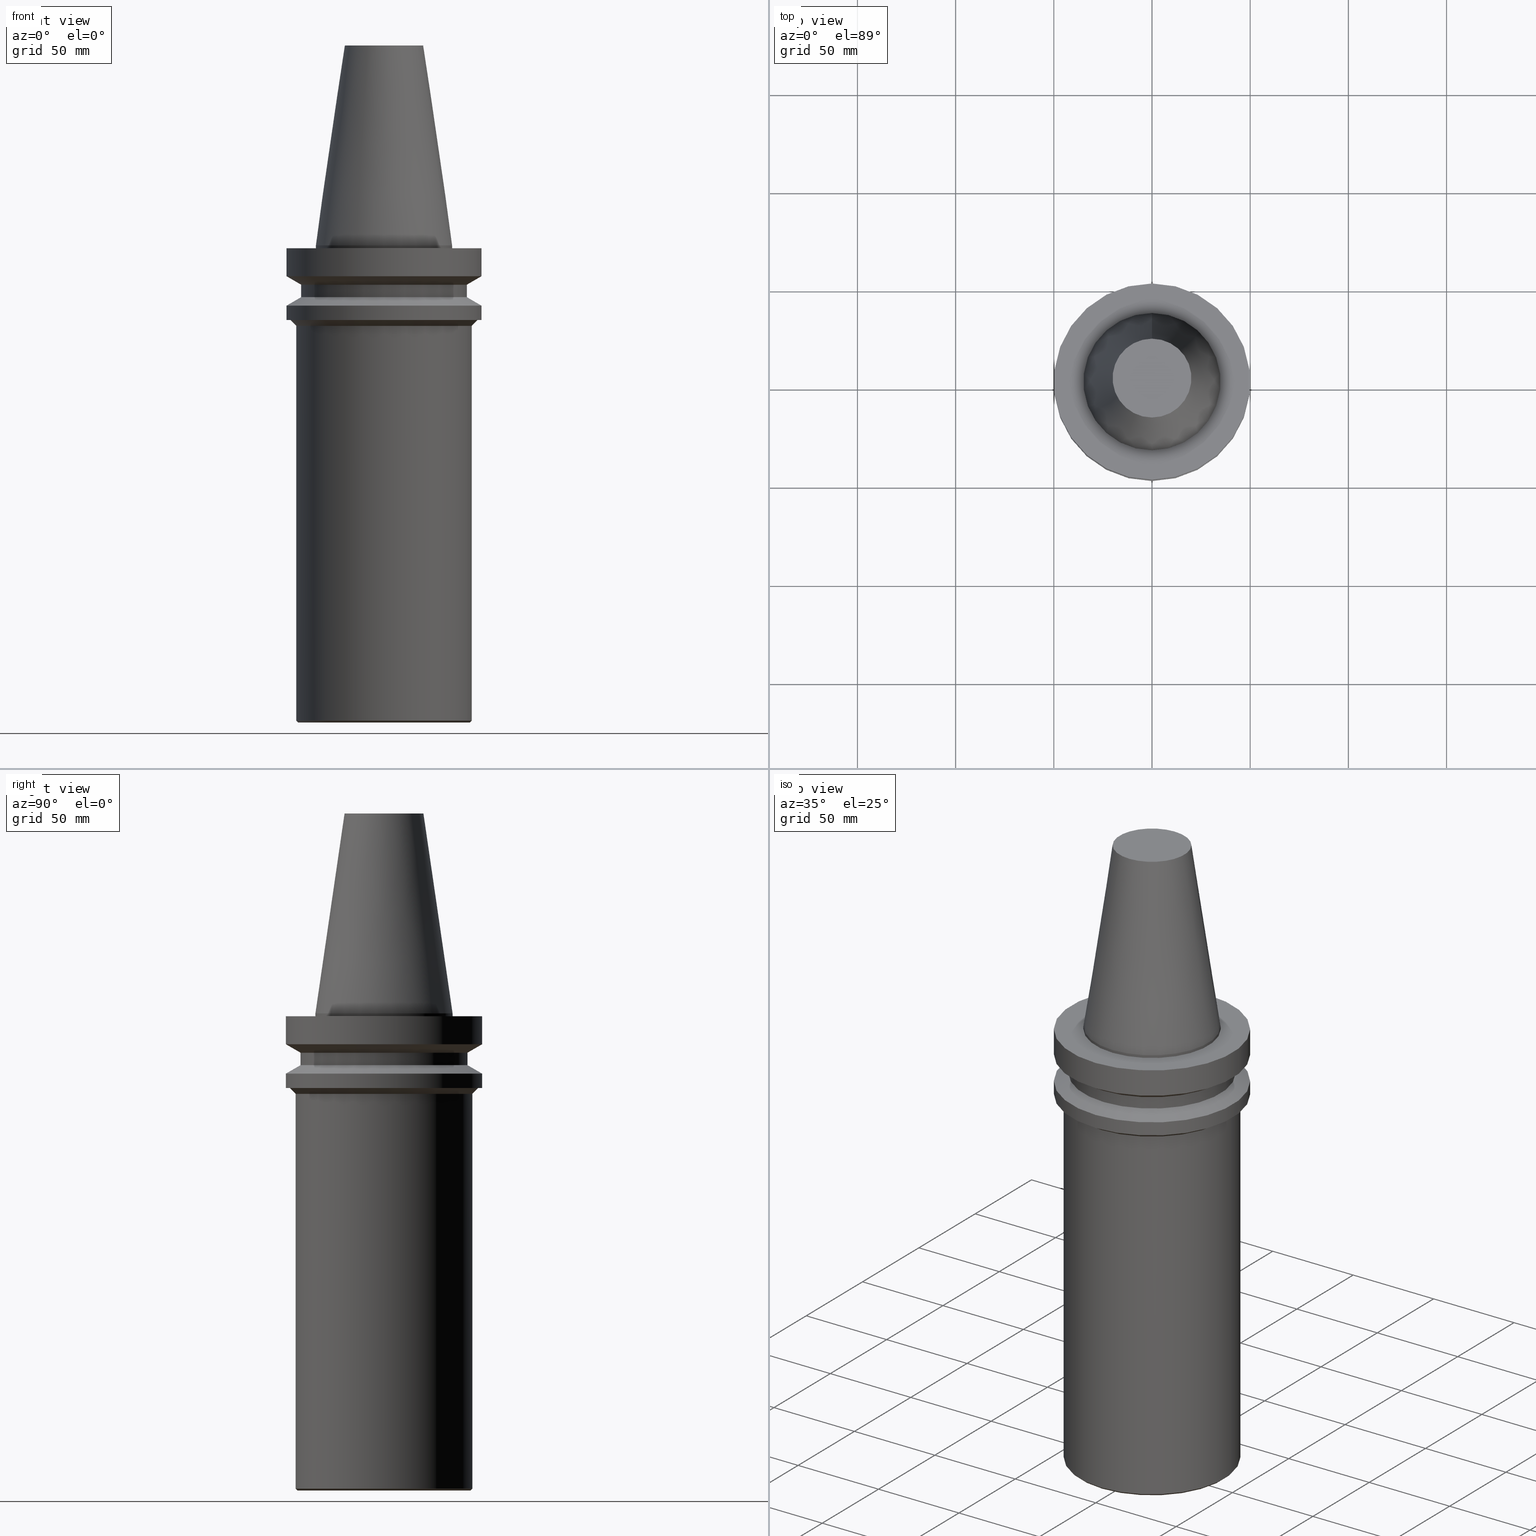
[diagram: canonical four-view strip — front | top / right | iso, engineering-drawing reading convention]
A machine part, canonical four-view strip (front | top / right | iso — engineering-drawing reading convention). The complete STEP part file that produces these views, byte-faithful:
ISO-10303-21;
HEADER;
FILE_DESCRIPTION((''),'1');
FILE_NAME('//Big_tech03/bigt/Translate/21_\X2\8F2A90ED7DDA\X0\-DXF/21_CK\X2\30DC30FC30EA30F330B030B730B930C630E0\X0\/01_CK\X2\30D930FC30B930DB30EB30C0\X0\ CK/BBT/BBT50/BBT50-CK7-360.stp','2012-05-17T03:51:20',(''),(''),'Spatial Interop R18','Kubotek KeyCreator V8.5.1 (14335)',' ');
FILE_SCHEMA(('CONFIG_CONTROL_DESIGN'));
ENDSEC;
DATA;
#1=DESIGN_CONTEXT('',#27,'design');
#2=APPLICATION_PROTOCOL_DEFINITION('INTERNATIONAL STANDARD','config_control_design',1994,#27);
#3=PRODUCT_CATEGORY_RELATIONSHIP('NONE','NONE',#28,#29);
#4=DATE_AND_TIME(#30,#31);
#5=DATE_TIME_ROLE('creation_date');
#6=DATE_TIME_ROLE('classification_date');
#7=PERSON_AND_ORGANIZATION_ROLE('creator');
#8=PERSON_AND_ORGANIZATION_ROLE('design_supplier');
#9=PERSON_AND_ORGANIZATION_ROLE('classification_officer');
#10=PERSON_AND_ORGANIZATION_ROLE('design_owner');
#11=APPROVAL_PERSON_ORGANIZATION(#32,#33,#34);
#12=APPROVAL_DATE_TIME(#4,#33);
#13=CC_DESIGN_APPROVAL(#33,(#35,#36,#37));
#14=CC_DESIGN_DATE_AND_TIME_ASSIGNMENT(#4,#5,(#37));
#15=CC_DESIGN_DATE_AND_TIME_ASSIGNMENT(#4,#6,(#35));
#16=CC_DESIGN_PERSON_AND_ORGANIZATION_ASSIGNMENT(#32,#10,(#38));
#17=CC_DESIGN_PERSON_AND_ORGANIZATION_ASSIGNMENT(#32,#7,(#37));
#18=CC_DESIGN_PERSON_AND_ORGANIZATION_ASSIGNMENT(#32,#7,(#36));
#19=CC_DESIGN_PERSON_AND_ORGANIZATION_ASSIGNMENT(#32,#8,(#36));
#20=CC_DESIGN_SECURITY_CLASSIFICATION(#35,(#36));
#21=CC_DESIGN_PERSON_AND_ORGANIZATION_ASSIGNMENT(#32,#9,(#35));
#22=SHAPE_DEFINITION_REPRESENTATION(#39,#40);
#23= (GEOMETRIC_REPRESENTATION_CONTEXT(3)GLOBAL_UNCERTAINTY_ASSIGNED_CONTEXT((#43))GLOBAL_UNIT_ASSIGNED_CONTEXT((#45,#46,#47))REPRESENTATION_CONTEXT('NONE','WORKSPACE'));
#27=APPLICATION_CONTEXT('CONFIGURATION CONTROLLED 3D DESIGNS OF MECHANICAL PARTS AND ASSEMBLIES');
#28=PRODUCT_CATEGORY('part','NONE');
#29=PRODUCT_RELATED_PRODUCT_CATEGORY('detail',' ',(#38));
#30=CALENDAR_DATE(2012,17,4);
#31=LOCAL_TIME(12,51,20.0,#49);
#32=PERSON_AND_ORGANIZATION(#50,#51);
#33=APPROVAL(#52,'SOLID MODEL');
#34=APPROVAL_ROLE('APPROVED');
#35=SECURITY_CLASSIFICATION('','',#53);
#36=PRODUCT_DEFINITION_FORMATION_WITH_SPECIFIED_SOURCE(' ','NONE',#38,.NOT_KNOWN.);
#37=PRODUCT_DEFINITION('NONE','NONE',#36,#1);
#38=PRODUCT('1','1','PART-1-DESC',(#54));
#39=PRODUCT_DEFINITION_SHAPE('NONE','NONE',#37);
#40=ADVANCED_BREP_SHAPE_REPRESENTATION('1',(#55,#56),#23);
#43=UNCERTAINTY_MEASURE_WITH_UNIT(LENGTH_MEASURE(1.0E-006),#45,'','');
#45= (CONVERSION_BASED_UNIT('MILLIMETRE',#59)LENGTH_UNIT()NAMED_UNIT(#62));
#46= (NAMED_UNIT(#64)PLANE_ANGLE_UNIT()SI_UNIT($,.RADIAN.));
#47= (NAMED_UNIT(#64)SOLID_ANGLE_UNIT()SI_UNIT($,.STERADIAN.));
#49=COORDINATED_UNIVERSAL_TIME_OFFSET(9,0,.AHEAD.);
#50=PERSON('','UNSPECIFIED',$,$,$,$);
#51=ORGANIZATION('UNSPECIFIED','UNSPECIFIED','UNSPECIFIED');
#52=APPROVAL_STATUS('approved');
#53=SECURITY_CLASSIFICATION_LEVEL('unclassified');
#54=MECHANICAL_CONTEXT('',#27,'mechanical');
#55=MANIFOLD_SOLID_BREP('1',#70);
#56=AXIS2_PLACEMENT_3D('',#71,#72,#73);
#59=LENGTH_MEASURE_WITH_UNIT(LENGTH_MEASURE(1.0),#74);
#62=DIMENSIONAL_EXPONENTS(1.0,0.0,0.0,0.0,0.0,0.0,0.0);
#64=DIMENSIONAL_EXPONENTS(0.0,0.0,0.0,0.0,0.0,0.0,0.0);
#70=CLOSED_SHELL('',(#75,#76,#77,#78,#79,#80,#81,#82,#83,#84,#85,#86,#87,#88));
#71=CARTESIAN_POINT('',(0.0,0.0,0.0));
#72=DIRECTION('',(0.0,0.0,1.0));
#73=DIRECTION('',(1.0,0.0,0.0));
#74= (NAMED_UNIT(#62)LENGTH_UNIT()SI_UNIT(.MILLI.,.METRE.));
#75=ADVANCED_FACE('',(#90),#91,.T.);
#76=ADVANCED_FACE('',(#92),#93,.T.);
#77=ADVANCED_FACE('',(#94,#95),#96,.T.);
#78=ADVANCED_FACE('',(#97,#98),#99,.T.);
#79=ADVANCED_FACE('',(#100,#101),#102,.T.);
#80=ADVANCED_FACE('',(#103,#104),#105,.T.);
#81=ADVANCED_FACE('',(#106,#107),#108,.T.);
#82=ADVANCED_FACE('',(#109,#110),#111,.T.);
#83=ADVANCED_FACE('',(#112,#113),#114,.T.);
#84=ADVANCED_FACE('',(#115,#116),#117,.T.);
#85=ADVANCED_FACE('',(#118,#119),#120,.T.);
#86=ADVANCED_FACE('',(#121,#122),#123,.T.);
#87=ADVANCED_FACE('',(#124,#125),#126,.T.);
#88=ADVANCED_FACE('',(#127,#128),#129,.T.);
#90=FACE_OUTER_BOUND('',#130,.T.);
#91=PLANE('',#131);
#92=FACE_OUTER_BOUND('',#132,.T.);
#93=PLANE('',#133);
#94=FACE_BOUND('',#134,.T.);
#95=FACE_BOUND('',#135,.T.);
#96=CONICAL_SURFACE('',#136,44.5,0.785398163397448);
#97=FACE_BOUND('',#137,.T.);
#98=FACE_BOUND('',#138,.T.);
#99=CYLINDRICAL_SURFACE('',#139,45.0);
#100=FACE_BOUND('',#140,.T.);
#101=FACE_BOUND('',#141,.T.);
#102=CONICAL_SURFACE('',#142,46.5,0.785398163397451);
#103=FACE_OUTER_BOUND('',#143,.T.);
#104=FACE_BOUND('',#144,.T.);
#105=PLANE('',#145);
#106=FACE_BOUND('',#146,.T.);
#107=FACE_BOUND('',#147,.T.);
#108=CYLINDRICAL_SURFACE('',#148,50.0000000000005);
#109=FACE_BOUND('',#149,.T.);
#110=FACE_BOUND('',#150,.T.);
#111=CONICAL_SURFACE('',#151,46.2500000000005,1.0471975511966);
#112=FACE_BOUND('',#152,.T.);
#113=FACE_BOUND('',#153,.T.);
#114=CYLINDRICAL_SURFACE('',#154,42.5000000000004);
#115=FACE_BOUND('',#155,.T.);
#116=FACE_BOUND('',#156,.T.);
#117=CONICAL_SURFACE('',#157,46.2500000000005,1.0471975511966);
#118=FACE_BOUND('',#158,.T.);
#119=FACE_BOUND('',#159,.T.);
#120=CYLINDRICAL_SURFACE('',#160,50.0000000000005);
#121=FACE_BOUND('',#161,.T.);
#122=FACE_OUTER_BOUND('',#162,.T.);
#123=PLANE('',#163);
#124=FACE_BOUND('',#164,.T.);
#125=FACE_BOUND('',#165,.T.);
#126=CYLINDRICAL_SURFACE('',#166,34.9250000000002);
#127=FACE_BOUND('',#167,.T.);
#128=FACE_BOUND('',#168,.T.);
#129=CONICAL_SURFACE('',#169,27.5020833333338,0.144812498238939);
#130=EDGE_LOOP('',(#170));
#131=AXIS2_PLACEMENT_3D('',#171,#172,#173);
#132=EDGE_LOOP('',(#174));
#133=AXIS2_PLACEMENT_3D('',#175,#176,#177);
#134=EDGE_LOOP('',(#178));
#135=EDGE_LOOP('',(#179));
#136=AXIS2_PLACEMENT_3D('',#180,#181,#182);
#137=EDGE_LOOP('',(#183));
#138=EDGE_LOOP('',(#184));
#139=AXIS2_PLACEMENT_3D('',#185,#186,#187);
#140=EDGE_LOOP('',(#188));
#141=EDGE_LOOP('',(#189));
#142=AXIS2_PLACEMENT_3D('',#190,#191,#192);
#143=EDGE_LOOP('',(#193));
#144=EDGE_LOOP('',(#194));
#145=AXIS2_PLACEMENT_3D('',#195,#196,#197);
#146=EDGE_LOOP('',(#198));
#147=EDGE_LOOP('',(#199));
#148=AXIS2_PLACEMENT_3D('',#200,#201,#202);
#149=EDGE_LOOP('',(#203));
#150=EDGE_LOOP('',(#204));
#151=AXIS2_PLACEMENT_3D('',#205,#206,#207);
#152=EDGE_LOOP('',(#208));
#153=EDGE_LOOP('',(#209));
#154=AXIS2_PLACEMENT_3D('',#210,#211,#212);
#155=EDGE_LOOP('',(#213));
#156=EDGE_LOOP('',(#214));
#157=AXIS2_PLACEMENT_3D('',#215,#216,#217);
#158=EDGE_LOOP('',(#218));
#159=EDGE_LOOP('',(#219));
#160=AXIS2_PLACEMENT_3D('',#220,#221,#222);
#161=EDGE_LOOP('',(#223));
#162=EDGE_LOOP('',(#224));
#163=AXIS2_PLACEMENT_3D('',#225,#226,#227);
#164=EDGE_LOOP('',(#228));
#165=EDGE_LOOP('',(#229));
#166=AXIS2_PLACEMENT_3D('',#230,#231,#232);
#167=EDGE_LOOP('',(#233));
#168=EDGE_LOOP('',(#234));
#169=AXIS2_PLACEMENT_3D('',#235,#236,#237);
#170=ORIENTED_EDGE('',*,*,#238,.T.);
#171=CARTESIAN_POINT('',(-6.23345220766003E-015,10.0395833333335,101.8));
#172=DIRECTION('',(-6.12323399573677E-017,-1.22464679914735E-016,1.0));
#173=DIRECTION('',(-1.23259516440783E-032,1.0,1.22464679914735E-016));
#174=ORIENTED_EDGE('',*,*,#239,.F.);
#175=CARTESIAN_POINT('',(1.48794586096404E-014,22.0,-243.000000000001));
#176=DIRECTION('',(6.12323399573677E-017,7.68412621514826E-016,-1.0));
#177=DIRECTION('',(5.1878855598897E-032,-1.0,-7.68412621514826E-016));
#178=ORIENTED_EDGE('',*,*,#240,.F.);
#179=ORIENTED_EDGE('',*,*,#239,.T.);
#180=CARTESIAN_POINT('',(1.48488424396617E-014,2.96976848793234E-014,-242.500000000001));
#181=DIRECTION('',(-6.12323399573677E-017,-1.22464679914735E-016,1.0));
#182=DIRECTION('',(-1.23259516440783E-032,1.0,1.22464679914735E-016));
#183=ORIENTED_EDGE('',*,*,#241,.F.);
#184=ORIENTED_EDGE('',*,*,#240,.T.);
#185=CARTESIAN_POINT('',(8.66437610396756E-015,1.73287522079351E-014,-141.500000000001));
#186=DIRECTION('',(6.12323399573677E-017,1.22464679914735E-016,-1.0));
#187=DIRECTION('',(-1.23259516440783E-032,1.0,1.22464679914735E-016));
#188=ORIENTED_EDGE('',*,*,#242,.F.);
#189=ORIENTED_EDGE('',*,*,#241,.T.);
#190=CARTESIAN_POINT('',(2.41867742831606E-015,4.83735485663212E-015,-39.5000000000006));
#191=DIRECTION('',(-6.12323399573677E-017,-1.22464679914735E-016,1.0));
#192=DIRECTION('',(-1.23259516440783E-032,1.0,1.22464679914735E-016));
#193=ORIENTED_EDGE('',*,*,#243,.F.);
#194=ORIENTED_EDGE('',*,*,#242,.T.);
#195=CARTESIAN_POINT('',(2.32682891838001E-015,49.0000000000002,-38.0000000000006));
#196=DIRECTION('',(6.12323399573677E-017,1.22464679914735E-016,-1.0));
#197=DIRECTION('',(1.23259516440783E-032,-1.0,-1.22464679914735E-016));
#198=ORIENTED_EDGE('',*,*,#244,.F.);
#199=ORIENTED_EDGE('',*,*,#243,.T.);
#200=CARTESIAN_POINT('',(2.1033308775356E-015,4.20666175507119E-015,-34.3500000000003));
#201=DIRECTION('',(6.12323399573677E-017,1.22464679914735E-016,-1.0));
#202=DIRECTION('',(-1.23259516440783E-032,1.0,1.22464679914735E-016));
#203=ORIENTED_EDGE('',*,*,#245,.F.);
#204=ORIENTED_EDGE('',*,*,#244,.T.);
#205=CARTESIAN_POINT('',(1.74726093185057E-015,3.49452186370114E-015,-28.5349364905388));
#206=DIRECTION('',(6.12323399573677E-017,1.22464679914735E-016,-1.0));
#207=DIRECTION('',(-1.23259516440783E-032,1.0,1.22464679914735E-016));
#208=ORIENTED_EDGE('',*,*,#246,.F.);
#209=ORIENTED_EDGE('',*,*,#245,.T.);
#210=CARTESIAN_POINT('',(1.42059028701093E-015,2.84118057402185E-015,-23.1999999999999));
#211=DIRECTION('',(6.12323399573677E-017,1.22464679914735E-016,-1.0));
#212=DIRECTION('',(-1.23259516440783E-032,1.0,1.22464679914735E-016));
#213=ORIENTED_EDGE('',*,*,#247,.F.);
#214=ORIENTED_EDGE('',*,*,#246,.T.);
#215=CARTESIAN_POINT('',(1.09391964217128E-015,2.18783928434256E-015,-17.865063509461));
#216=DIRECTION('',(-6.12323399573677E-017,-1.22464679914735E-016,1.0));
#217=DIRECTION('',(-1.23259516440783E-032,1.0,1.22464679914735E-016));
#218=ORIENTED_EDGE('',*,*,#248,.F.);
#219=ORIENTED_EDGE('',*,*,#247,.T.);
#220=CARTESIAN_POINT('',(5.26598123633504E-016,1.05319624726701E-015,-8.60000000000232));
#221=DIRECTION('',(6.12323399573677E-017,1.22464679914735E-016,-1.0));
#222=DIRECTION('',(-1.23259516440783E-032,1.0,1.22464679914735E-016));
#223=ORIENTED_EDGE('',*,*,#249,.F.);
#224=ORIENTED_EDGE('',*,*,#248,.T.);
#225=CARTESIAN_POINT('',(9.18485099361693E-017,42.4625000000002,-1.50000000000193));
#226=DIRECTION('',(-6.12323399573677E-017,3.69495267723969E-013,1.0));
#227=DIRECTION('',(2.26202326931819E-029,1.0,-3.69495267723969E-013));
#228=ORIENTED_EDGE('',*,*,#250,.F.);
#229=ORIENTED_EDGE('',*,*,#249,.T.);
#230=CARTESIAN_POINT('',(4.59242549679996E-017,9.18485099359993E-017,-0.749999999999574));
#231=DIRECTION('',(6.12323399573676E-017,1.22464679914735E-016,-1.0));
#232=DIRECTION('',(-1.23259516440783E-032,1.0,1.22464679914735E-016));
#233=ORIENTED_EDGE('',*,*,#238,.F.);
#234=ORIENTED_EDGE('',*,*,#250,.T.);
#235=CARTESIAN_POINT('',(-3.11672610383001E-015,-6.23345220766003E-015,50.9));
#236=DIRECTION('',(6.12323399573677E-017,1.22464679914735E-016,-1.0));
#237=DIRECTION('',(-1.23259516440783E-032,1.0,1.22464679914735E-016));
#238=EDGE_CURVE('',#251,#251,#252,.T.);
#239=EDGE_CURVE('',#253,#253,#254,.T.);
#240=EDGE_CURVE('',#255,#255,#256,.T.);
#241=EDGE_CURVE('',#257,#257,#258,.T.);
#242=EDGE_CURVE('',#259,#259,#260,.T.);
#243=EDGE_CURVE('',#261,#261,#262,.T.);
#244=EDGE_CURVE('',#263,#263,#264,.T.);
#245=EDGE_CURVE('',#265,#265,#266,.T.);
#246=EDGE_CURVE('',#267,#267,#268,.T.);
#247=EDGE_CURVE('',#269,#269,#270,.T.);
#248=EDGE_CURVE('',#271,#271,#272,.T.);
#249=EDGE_CURVE('',#273,#273,#274,.T.);
#250=EDGE_CURVE('',#275,#275,#276,.T.);
#251=VERTEX_POINT('',#277);
#252=CIRCLE('',#278,20.0791666666671);
#253=VERTEX_POINT('',#279);
#254=CIRCLE('',#280,44.0);
#255=VERTEX_POINT('',#281);
#256=CIRCLE('',#282,45.0);
#257=VERTEX_POINT('',#283);
#258=CIRCLE('',#284,45.0);
#259=VERTEX_POINT('',#285);
#260=CIRCLE('',#286,48.0);
#261=VERTEX_POINT('',#287);
#262=CIRCLE('',#288,50.0000000000005);
#263=VERTEX_POINT('',#289);
#264=CIRCLE('',#290,50.0000000000005);
#265=VERTEX_POINT('',#291);
#266=CIRCLE('',#292,42.5000000000004);
#267=VERTEX_POINT('',#293);
#268=CIRCLE('',#294,42.5000000000004);
#269=VERTEX_POINT('',#295);
#270=CIRCLE('',#296,50.0000000000005);
#271=VERTEX_POINT('',#297);
#272=CIRCLE('',#298,50.0000000000005);
#273=VERTEX_POINT('',#299);
#274=CIRCLE('',#300,34.9249999999999);
#275=VERTEX_POINT('',#301);
#276=CIRCLE('',#302,34.9250000000004);
#277=CARTESIAN_POINT('',(-6.23345220766003E-015,20.0791666666671,101.8));
#278=AXIS2_PLACEMENT_3D('',#303,#304,#305);
#279=CARTESIAN_POINT('',(1.48794586096404E-014,44.0,-243.000000000001));
#280=AXIS2_PLACEMENT_3D('',#306,#307,#308);
#281=CARTESIAN_POINT('',(1.4818226269683E-014,45.0,-242.000000000001));
#282=AXIS2_PLACEMENT_3D('',#309,#310,#311);
#283=CARTESIAN_POINT('',(2.51052593825211E-015,45.0,-41.0000000000006));
#284=AXIS2_PLACEMENT_3D('',#312,#313,#314);
#285=CARTESIAN_POINT('',(2.32682891838001E-015,48.0,-38.0000000000006));
#286=AXIS2_PLACEMENT_3D('',#315,#316,#317);
#287=CARTESIAN_POINT('',(2.32682891838001E-015,50.0000000000005,-38.0000000000006));
#288=AXIS2_PLACEMENT_3D('',#318,#319,#320);
#289=CARTESIAN_POINT('',(1.87983283669118E-015,50.0000000000005,-30.6999999999999));
#290=AXIS2_PLACEMENT_3D('',#321,#322,#323);
#291=CARTESIAN_POINT('',(1.61468902700995E-015,42.5000000000004,-26.3698729810777));
#292=AXIS2_PLACEMENT_3D('',#324,#325,#326);
#293=CARTESIAN_POINT('',(1.2264915470119E-015,42.5000000000004,-20.0301270189221));
#294=AXIS2_PLACEMENT_3D('',#327,#328,#329);
#295=CARTESIAN_POINT('',(9.61347737330667E-016,50.0000000000005,-15.6999999999999));
#296=AXIS2_PLACEMENT_3D('',#330,#331,#332);
#297=CARTESIAN_POINT('',(9.18485099363398E-017,50.0000000000005,-1.50000000000471));
#298=AXIS2_PLACEMENT_3D('',#333,#334,#335);
#299=CARTESIAN_POINT('',(9.18485099359988E-017,34.9249999999999,-1.49999999999914));
#300=AXIS2_PLACEMENT_3D('',#336,#337,#338);
#301=CARTESIAN_POINT('',(-4.3048386116944E-031,34.9250000000004,4.27707894602218E-015));
#302=AXIS2_PLACEMENT_3D('',#339,#340,#341);
#303=CARTESIAN_POINT('',(-6.23345220766003E-015,-1.24669044153201E-014,101.8));
#304=DIRECTION('',(-6.12323399573677E-017,-1.22464679914735E-016,1.0));
#305=DIRECTION('',(-1.23259516440783E-032,1.0,1.22464679914735E-016));
#306=CARTESIAN_POINT('',(1.48794586096404E-014,2.97589172192808E-014,-243.000000000001));
#307=DIRECTION('',(-6.12323399573677E-017,-1.22464679914735E-016,1.0));
#308=DIRECTION('',(-1.23259516440783E-032,1.0,1.22464679914735E-016));
#309=CARTESIAN_POINT('',(1.4818226269683E-014,2.9636452539366E-014,-242.000000000001));
#310=DIRECTION('',(-6.12323399573677E-017,-1.22464679914735E-016,1.0));
#311=DIRECTION('',(-1.23259516440783E-032,1.0,1.22464679914735E-016));
#312=CARTESIAN_POINT('',(2.51052593825211E-015,5.02105187650422E-015,-41.0000000000006));
#313=DIRECTION('',(-6.12323399573677E-017,-1.22464679914735E-016,1.0));
#314=DIRECTION('',(-1.23259516440783E-032,1.0,1.22464679914735E-016));
#315=CARTESIAN_POINT('',(2.32682891838001E-015,4.65365783676002E-015,-38.0000000000006));
#316=DIRECTION('',(-6.12323399573676E-017,-1.22464679914735E-016,1.0));
#317=DIRECTION('',(-1.23259516440783E-032,1.0,1.22464679914735E-016));
#318=CARTESIAN_POINT('',(2.32682891838001E-015,4.65365783676002E-015,-38.0000000000006));
#319=DIRECTION('',(-6.12323399573677E-017,-1.22464679914735E-016,1.0));
#320=DIRECTION('',(-1.23259516440783E-032,1.0,1.22464679914735E-016));
#321=CARTESIAN_POINT('',(1.87983283669118E-015,3.75966567338236E-015,-30.6999999999999));
#322=DIRECTION('',(-6.12323399573677E-017,-1.22464679914735E-016,1.0));
#323=DIRECTION('',(-1.23259516440783E-032,1.0,1.22464679914735E-016));
#324=CARTESIAN_POINT('',(1.61468902700995E-015,3.22937805401991E-015,-26.3698729810777));
#325=DIRECTION('',(-6.12323399573677E-017,-1.22464679914735E-016,1.0));
#326=DIRECTION('',(-1.23259516440783E-032,1.0,1.22464679914735E-016));
#327=CARTESIAN_POINT('',(1.2264915470119E-015,2.45298309402379E-015,-20.0301270189221));
#328=DIRECTION('',(-6.12323399573677E-017,-1.22464679914735E-016,1.0));
#329=DIRECTION('',(-1.23259516440783E-032,1.0,1.22464679914735E-016));
#330=CARTESIAN_POINT('',(9.61347737330668E-016,1.92269547466134E-015,-15.6999999999999));
#331=DIRECTION('',(-6.12323399573677E-017,-1.22464679914735E-016,1.0));
#332=DIRECTION('',(-1.23259516440783E-032,1.0,1.22464679914735E-016));
#333=CARTESIAN_POINT('',(9.18485099363404E-017,1.83697019872681E-016,-1.50000000000472));
#334=DIRECTION('',(-6.12323399573677E-017,-1.22464679914735E-016,1.0));
#335=DIRECTION('',(-1.23259516440783E-032,1.0,1.22464679914735E-016));
#336=CARTESIAN_POINT('',(9.18485099359993E-017,1.83697019871999E-016,-1.49999999999915));
#337=DIRECTION('',(-6.12323399573676E-017,-1.22464679914735E-016,1.0));
#338=DIRECTION('',(-1.23259516440783E-032,1.0,1.22464679914735E-016));
#339=CARTESIAN_POINT('',(0.0,0.0,0.0));
#340=DIRECTION('',(-6.12323399573677E-017,-1.22464679914735E-016,1.0));
#341=DIRECTION('',(-1.23259516440783E-032,1.0,1.22464679914735E-016));
ENDSEC;
END-ISO-10303-21;
